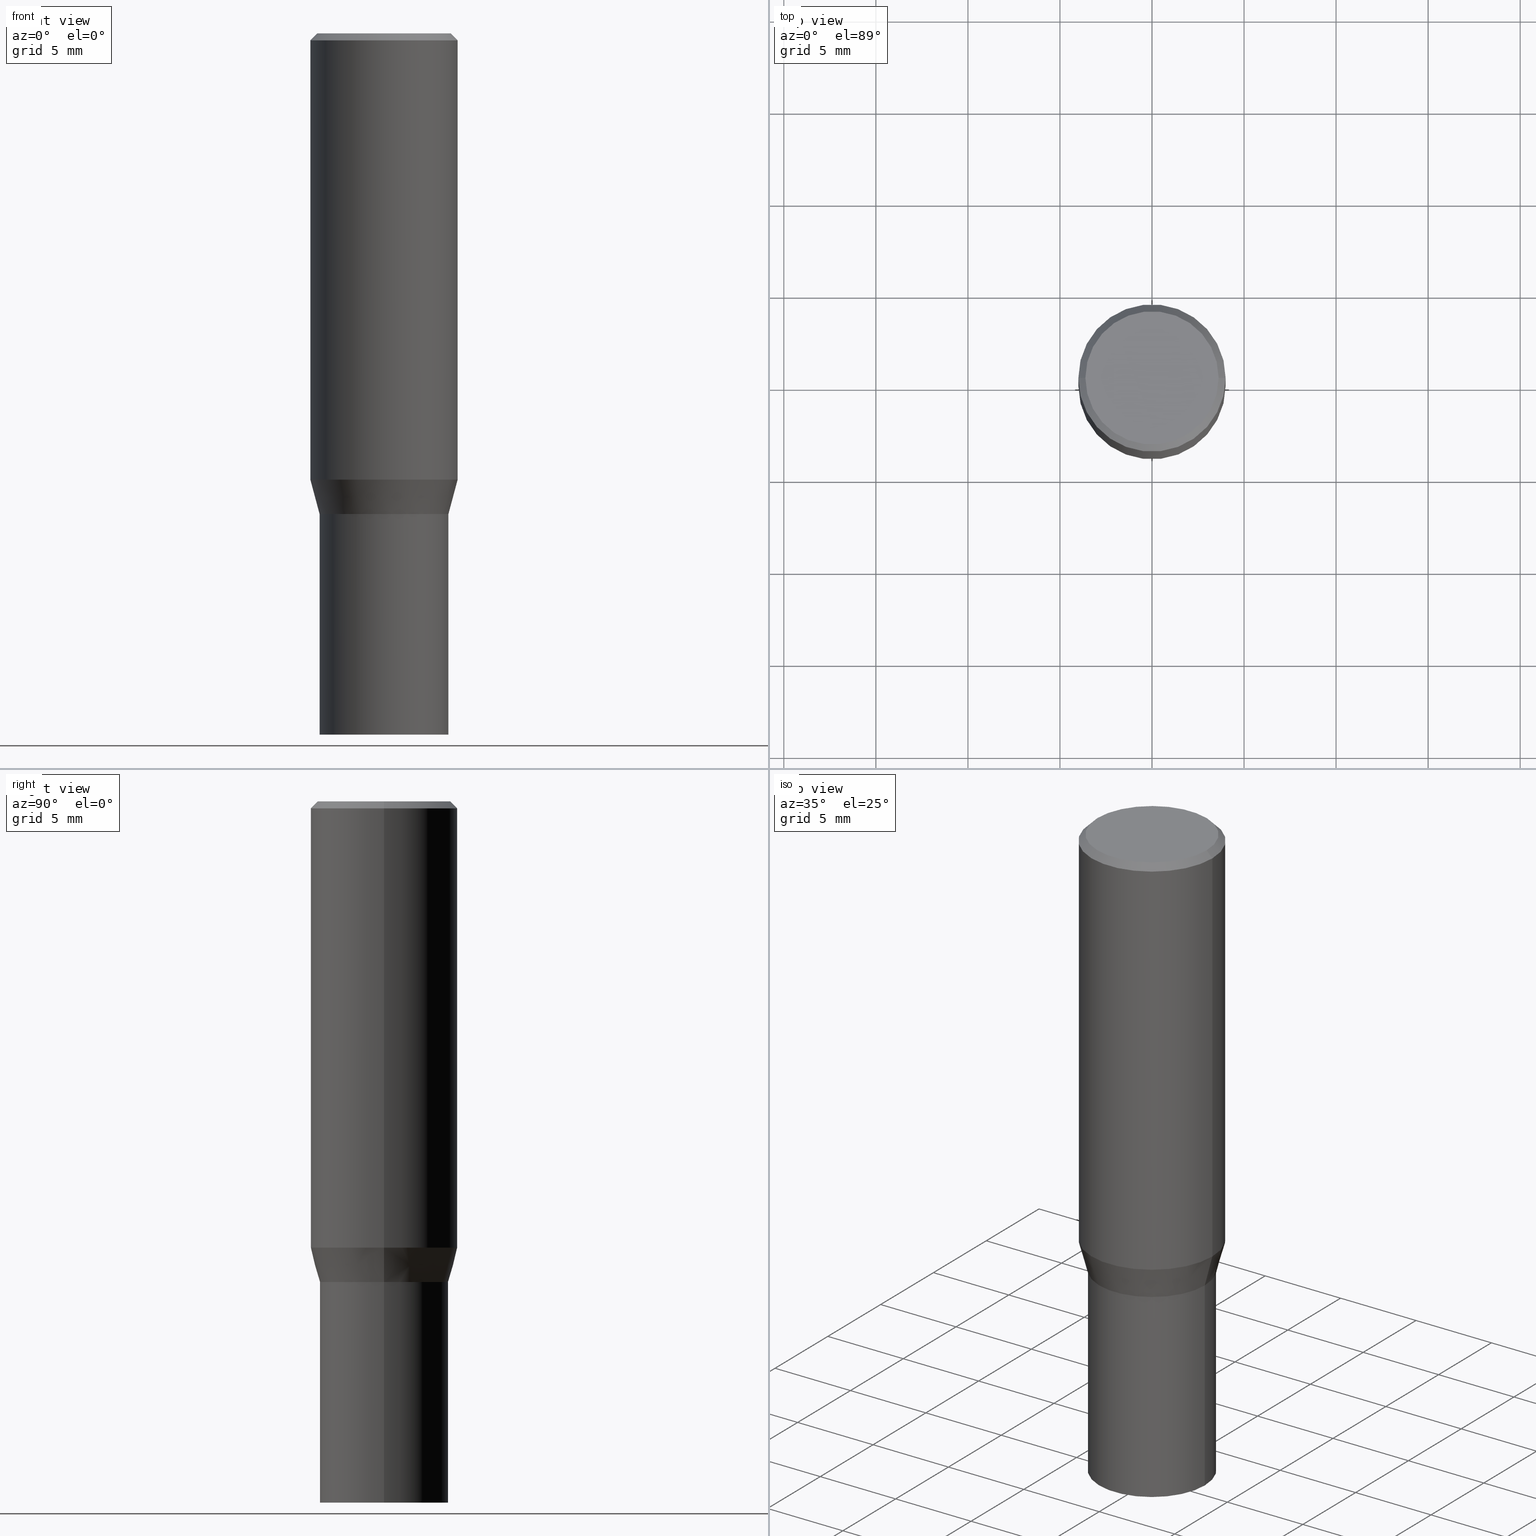
[diagram: canonical four-view strip — front | top / right | iso, engineering-drawing reading convention]
A machine part, canonical four-view strip (front | top / right | iso — engineering-drawing reading convention). The complete STEP part file that produces these views, byte-faithful:
ISO-10303-21;
HEADER;
FILE_DESCRIPTION (( 'STEP AP203' ),
    '1' );
FILE_NAME ('41745.STEP',
    '2024-03-12T19:17:48',
    ( '' ),
    ( '' ),
    'SwSTEP 2.0',
    'SolidWorks 2023',
    '' );
FILE_SCHEMA (( 'CONFIG_CONTROL_DESIGN' ));
ENDSEC;

DATA;
#1 = ADVANCED_FACE ( 'NONE', ( #315 ), #323, .T. ) ;
#2 = FACE_OUTER_BOUND ( 'NONE', #136, .T. ) ;
#3 = CARTESIAN_POINT ( 'NONE',  ( 2.511741010832753769E-29, -3.586100483125795415E-15, -1.027100000000000124 ) ) ;
#4 = AXIS2_PLACEMENT_3D ( 'NONE', #426, #77, #327 ) ;
#5 = DIRECTION ( 'NONE',  ( -2.445468806185136877E-29, 3.491481338843145188E-15, 1.000000000000000000 ) ) ;
#6 = CARTESIAN_POINT ( 'NONE',  ( 2.512963745235846570E-29, -3.587846223795216918E-15, -1.027600000000000069 ) ) ;
#7 = DIRECTION ( 'NONE',  ( 2.445468806185136597E-29, -3.491481338843145583E-15, -1.000000000000000000 ) ) ;
#8 = CARTESIAN_POINT ( 'NONE',  ( 2.512963745235846851E-29, -3.587846223795217707E-15, -1.027600000000000291 ) ) ;
#9 = CC_DESIGN_PERSON_AND_ORGANIZATION_ASSIGNMENT ( #173, #229, ( #64 ) ) ;
#10 = CLOSED_SHELL ( 'NONE', ( #87, #68, #353, #232 ) ) ;
#11 = CIRCLE ( 'NONE', #45, 0.1373000000000000054 ) ;
#12 = CARTESIAN_POINT ( 'NONE',  ( 0.000000000000000000, 0.000000000000000000, 0.000000000000000000 ) ) ;
#13 = MANIFOLD_SOLID_BREP ( 'Body-Move/Copy2[1]', #10 ) ;
#14 = DATE_AND_TIME ( #203, #31 ) ;
#15 = ORIENTED_EDGE ( 'NONE', *, *, #170, .T. ) ;
#16 = EDGE_CURVE ( 'NONE', #91, #58, #384, .T. ) ;
#17 = APPLICATION_PROTOCOL_DEFINITION ( 'international standard', 'config_control_design', 1994, #175 ) ;
#18 = LINE ( 'NONE', #274, #226 ) ;
#19 = ORIENTED_EDGE ( 'NONE', *, *, #174, .T. ) ;
#20 = ORIENTED_EDGE ( 'NONE', *, *, #254, .F. ) ;
#21 = AXIS2_PLACEMENT_3D ( 'NONE', #246, #290, #183 ) ;
#22 = MECHANICAL_CONTEXT ( 'NONE', #175, 'mechanical' ) ;
#23 = VERTEX_POINT ( 'NONE', #372 ) ;
#24 = ORIENTED_EDGE ( 'NONE', *, *, #16, .T. ) ;
#25 = DIRECTION ( 'NONE',  ( -2.445468806185136597E-29, 3.491481338843145583E-15, 1.000000000000000000 ) ) ;
#26 = EDGE_CURVE ( 'NONE', #440, #168, #345, .T. ) ;
#27 = EDGE_LOOP ( 'NONE', ( #451, #20, #446, #231 ) ) ;
#28 = CIRCLE ( 'NONE', #146, 0.1575000000000000011 ) ;
#29 = ADVANCED_FACE ( 'NONE', ( #126 ), #197, .T. ) ;
#30 = CARTESIAN_POINT ( 'NONE',  ( 3.668203209277705088E-31, -5.237222008264718399E-17, -0.01499999999999999944 ) ) ;
#31 = LOCAL_TIME ( 15, 17, 48.00000000000000000, #92 ) ;
#32 = DIRECTION ( 'NONE',  ( 2.445468806185136597E-29, -3.491481338843145583E-15, -1.000000000000000000 ) ) ;
#33 = CARTESIAN_POINT ( 'NONE',  ( 0.000000000000000000, 0.000000000000000000, 0.000000000000000000 ) ) ;
#34 = EDGE_LOOP ( 'NONE', ( #24, #228 ) ) ;
#35 = CARTESIAN_POINT ( 'NONE',  ( 9.622522569851927205E-16, 0.1377999999999964253, -1.027600000000000735 ) ) ;
#36 = PERSON ( 'UNSPECIFIED', 'UNSPECIFIED', 'UNSPECIFIED', ('UNSPECIFIED'), ('UNSPECIFIED'), ('UNSPECIFIED') ) ;
#37 = CARTESIAN_POINT ( 'NONE',  ( 2.334147640248070557E-29, -3.332544217051005165E-15, -0.9544785990908941642 ) ) ;
#38 = AXIS2_PLACEMENT_3D ( 'NONE', #300, #191, #340 ) ;
#39 = EDGE_CURVE ( 'NONE', #454, #202, #18, .T. ) ;
#40 = ORIENTED_EDGE ( 'NONE', *, *, #371, .F. ) ;
#41 = DIRECTION ( 'NONE',  ( 1.000000000000000000, -6.982962677686267499E-15, 4.876176775795935793E-29 ) ) ;
#42 = FACE_OUTER_BOUND ( 'NONE', #281, .T. ) ;
#43 = CC_DESIGN_PERSON_AND_ORGANIZATION_ASSIGNMENT ( #159, #135, ( #158 ) ) ;
#44 = LINE ( 'NONE', #121, #336 ) ;
#45 = AXIS2_PLACEMENT_3D ( 'NONE', #155, #365, #221 ) ;
#46 = SECURITY_CLASSIFICATION ( '', '', #381 ) ;
#47 = EDGE_CURVE ( 'NONE', #94, #200, #167, .T. ) ;
#48 = DIRECTION ( 'NONE',  ( 1.000000000000000000, -6.982962677686270655E-15, 0.000000000000000000 ) ) ;
#49 = ADVANCED_FACE ( 'NONE', ( #258 ), #157, .T. ) ;
#50 = DIRECTION ( 'NONE',  ( 1.000000000000000000, -6.982962677686266711E-15, 0.000000000000000000 ) ) ;
#51 = EDGE_LOOP ( 'NONE', ( #239, #253, #70, #386 ) ) ;
#52 = PERSON_AND_ORGANIZATION ( #36, #329 ) ;
#53 = EDGE_CURVE ( 'NONE', #58, #101, #299, .T. ) ;
#54 = VECTOR ( 'NONE', #5, 39.37007874015748143 ) ;
#55 = COORDINATED_UNIVERSAL_TIME_OFFSET ( 5, 0, .BEHIND. ) ;
#56 = PLANE ( 'NONE',  #373 ) ;
#57 = CARTESIAN_POINT ( 'NONE',  ( 5.413510571379636467E-45, -7.729058366967026333E-31, -2.213690298435890852E-16 ) ) ;
#58 = VERTEX_POINT ( 'NONE', #93 ) ;
#59 = DATE_AND_TIME ( #237, #464 ) ;
#60 = ORIENTED_EDGE ( 'NONE', *, *, #423, .T. ) ;
#61 = PERSON_AND_ORGANIZATION_ROLE ( 'classification_officer' ) ;
#62 = ORIENTED_EDGE ( 'NONE', *, *, #16, .F. ) ;
#63 = AXIS2_PLACEMENT_3D ( 'NONE', #33, #355, #459 ) ;
#64 = PRODUCT ( '41745', '41745', '', ( #22 ) ) ;
#65 = CARTESIAN_POINT ( 'NONE',  ( -0.1575000000000000011, 1.047444401652939809E-15, -0.01499999999999999944 ) ) ;
#66 = PERSON_AND_ORGANIZATION ( #36, #329 ) ;
#67 = ORIENTED_EDGE ( 'NONE', *, *, #248, .T. ) ;
#68 = ADVANCED_FACE ( 'NONE', ( #375 ), #56, .F. ) ;
#69 = DIRECTION ( 'NONE',  ( -1.000000000000000000, 6.982962677686265922E-15, 0.000000000000000000 ) ) ;
#70 = ORIENTED_EDGE ( 'NONE', *, *, #26, .T. ) ;
#71 = AXIS2_PLACEMENT_3D ( 'NONE', #447, #132, #436 ) ;
#72 = FACE_OUTER_BOUND ( 'NONE', #34, .T. ) ;
#73 = ADVANCED_FACE ( 'NONE', ( #245 ), #378, .F. ) ;
#74 = CARTESIAN_POINT ( 'NONE',  ( 0.1575000000000000011, -4.432360838786593040E-15, -0.9544785990908941642 ) ) ;
#75 = DIRECTION ( 'NONE',  ( -0.7071067811865526798, 2.468850131082310309E-15, -0.7071067811865424657 ) ) ;
#76 = DIRECTION ( 'NONE',  ( 1.000000000000000000, -6.982962677686265922E-15, 0.000000000000000000 ) ) ;
#77 = DIRECTION ( 'NONE',  ( -2.445468806185136597E-29, 3.491481338843145583E-15, 1.000000000000000000 ) ) ;
#78 = CIRCLE ( 'NONE', #356, 0.1378000000000002001 ) ;
#79 = LOCAL_TIME ( 15, 17, 48.00000000000000000, #55 ) ;
#80 = CARTESIAN_POINT ( 'NONE',  ( 0.1575000000000000011, -1.132900654731663450E-15, -0.01499999999999999944 ) ) ;
#81 = DIRECTION ( 'NONE',  ( 1.000000000000000000, -6.982962677686265922E-15, 0.000000000000000000 ) ) ;
#82 = DIRECTION ( 'NONE',  ( 1.000000000000000000, -6.982962677686266711E-15, 0.000000000000000000 ) ) ;
#83 = DIRECTION ( 'NONE',  ( -2.445468806185136597E-29, 3.491481338843145583E-15, 1.000000000000000000 ) ) ;
#84 = CARTESIAN_POINT ( 'NONE',  ( 0.1373000000000000054, -4.546606999441542177E-15, -1.027600000000000291 ) ) ;
#85 = CARTESIAN_POINT ( 'NONE',  ( -0.1575000000000000011, -2.213439408228846773E-15, -0.9544785990908941642 ) ) ;
#86 = CIRCLE ( 'NONE', #429, 0.1378000000000002001 ) ;
#87 = ADVANCED_FACE ( 'NONE', ( #166 ), #394, .T. ) ;
#88 = DIRECTION ( 'NONE',  ( -2.445468806185136597E-29, 3.491481338843145583E-15, 1.000000000000000000 ) ) ;
#89 = APPROVAL_ROLE ( '' ) ;
#90 = EDGE_CURVE ( 'NONE', #58, #91, #267, .T. ) ;
#91 = VERTEX_POINT ( 'NONE', #184 ) ;
#92 = COORDINATED_UNIVERSAL_TIME_OFFSET ( 5, 0, .BEHIND. ) ;
#93 = CARTESIAN_POINT ( 'NONE',  ( 0.1424999999999999878, -1.055260809707053708E-15, -2.213690298435819362E-16 ) ) ;
#94 = VERTEX_POINT ( 'NONE', #85 ) ;
#95 = CC_DESIGN_APPROVAL ( #406, ( #46 ) ) ;
#96 = PERSON_AND_ORGANIZATION_ROLE ( 'design_supplier' ) ;
#97 = DIRECTION ( 'NONE',  ( 1.000000000000000000, -6.982962677686265922E-15, 4.876176775795935793E-29 ) ) ;
#98 = DIRECTION ( 'NONE',  ( 1.000000000000000000, -6.982962677686266711E-15, 4.874020801377837404E-29 ) ) ;
#99 = ORIENTED_EDGE ( 'NONE', *, *, #90, .F. ) ;
#100 = EDGE_LOOP ( 'NONE', ( #286, #437, #243, #198 ) ) ;
#101 = VERTEX_POINT ( 'NONE', #296 ) ;
#102 = APPROVAL_STATUS ( 'not_yet_approved' ) ;
#103 = ORIENTED_EDGE ( 'NONE', *, *, #47, .F. ) ;
#104 = AXIS2_PLACEMENT_3D ( 'NONE', #30, #324, #218 ) ;
#105 = APPROVAL_PERSON_ORGANIZATION ( #307, #189, #377 ) ;
#106 = ORIENTED_EDGE ( 'NONE', *, *, #214, .T. ) ;
#107 = LINE ( 'NONE', #389, #391 ) ;
#108 = DIRECTION ( 'NONE',  ( -2.445468806185136597E-29, 3.491481338843145583E-15, 1.000000000000000000 ) ) ;
#109 = AXIS2_PLACEMENT_3D ( 'NONE', #6, #265, #335 ) ;
#110 = CARTESIAN_POINT ( 'NONE',  ( -0.1373000000000000054, -2.612271047596599917E-15, -1.027600000000000291 ) ) ;
#111 = CC_DESIGN_SECURITY_CLASSIFICATION ( #46, ( #158 ) ) ;
#112 = DIRECTION ( 'NONE',  ( -2.445468806185136597E-29, 3.491481338843145583E-15, 1.000000000000000000 ) ) ;
#113 = ORIENTED_EDGE ( 'NONE', *, *, #131, .T. ) ;
#114 = CARTESIAN_POINT ( 'NONE',  ( 2.513941932758320587E-29, -3.589242816330753332E-15, -1.028000000000000025 ) ) ;
#115 = PRODUCT_DEFINITION ( 'UNKNOWN', '', #158, #392 ) ;
#116 = CARTESIAN_POINT ( 'NONE',  ( 0.1378000000000000058, -6.199474265249886443E-15, -1.500000000000000222 ) ) ;
#117 = AXIS2_PLACEMENT_3D ( 'NONE', #344, #161, #439 ) ;
#118 = AXIS2_PLACEMENT_3D ( 'NONE', #302, #120, #431 ) ;
#119 = EDGE_CURVE ( 'NONE', #91, #200, #171, .T. ) ;
#120 = DIRECTION ( 'NONE',  ( -2.445468806185136597E-29, 3.491481338843145583E-15, 1.000000000000000000 ) ) ;
#121 = CARTESIAN_POINT ( 'NONE',  ( -0.1378000000000000058, 9.791278898774180975E-16, -6.778292554371260034E-30 ) ) ;
#122 = LENGTH_MEASURE_WITH_UNIT ( LENGTH_MEASURE( 0.02539999999999999897 ), #339 );
#123 = AXIS2_PLACEMENT_3D ( 'NONE', #337, #430, #48 ) ;
#124 = PLANE ( 'NONE',  #397 ) ;
#125 = PERSON_AND_ORGANIZATION_ROLE ( 'creator' ) ;
#126 = FACE_OUTER_BOUND ( 'NONE', #163, .T. ) ;
#127 = CC_DESIGN_PERSON_AND_ORGANIZATION_ASSIGNMENT ( #66, #125, ( #115 ) ) ;
#128 = ORIENTED_EDGE ( 'NONE', *, *, #141, .F. ) ;
#129 = DATE_AND_TIME ( #199, #284 ) ;
#130 = ADVANCED_FACE ( 'NONE', ( #142 ), #460, .F. ) ;
#131 = EDGE_CURVE ( 'NONE', #449, #454, #403, .T. ) ;
#132 = DIRECTION ( 'NONE',  ( -2.445468806185136597E-29, 3.491481338843145583E-15, 1.000000000000000000 ) ) ;
#133 = ORIENTED_EDGE ( 'NONE', *, *, #119, .T. ) ;
#134 = VERTEX_POINT ( 'NONE', #256 ) ;
#135 = PERSON_AND_ORGANIZATION_ROLE ( 'creator' ) ;
#136 = EDGE_LOOP ( 'NONE', ( #216, #382 ) ) ;
#137 = CONICAL_SURFACE ( 'NONE', #123, 0.1378000000000002001, 0.2617993877991500740 ) ;
#138 = DIRECTION ( 'NONE',  ( -2.445468806185136877E-29, 3.491481338843145188E-15, 1.000000000000000000 ) ) ;
#139 = ORIENTED_EDGE ( 'NONE', *, *, #432, .T. ) ;
#140 = ORIENTED_EDGE ( 'NONE', *, *, #182, .F. ) ;
#141 = EDGE_CURVE ( 'NONE', #454, #204, #425, .T. ) ;
#142 = FACE_OUTER_BOUND ( 'NONE', #346, .T. ) ;
#143 = ORIENTED_EDGE ( 'NONE', *, *, #214, .F. ) ;
#144 = DIRECTION ( 'NONE',  ( 1.000000000000000000, -6.982962677686267499E-15, 4.876176775795936353E-29 ) ) ;
#145 = ORIENTED_EDGE ( 'NONE', *, *, #223, .T. ) ;
#146 = AXIS2_PLACEMENT_3D ( 'NONE', #361, #359, #215 ) ;
#147 = LINE ( 'NONE', #110, #240 ) ;
#148 = DIRECTION ( 'NONE',  ( -0.2588190451025213501, 5.211531920934551042E-15, 0.9659258262890682012 ) ) ;
#149 = DIRECTION ( 'NONE',  ( -2.445468806185136597E-29, 3.491481338843145583E-15, 1.000000000000000000 ) ) ;
#150 = DIRECTION ( 'NONE',  ( -2.445468806185136597E-29, 3.491481338843145583E-15, 1.000000000000000000 ) ) ;
#151 = EDGE_CURVE ( 'NONE', #449, #134, #107, .T. ) ;
#152 = AXIS2_PLACEMENT_3D ( 'NONE', #325, #289, #153 ) ;
#153 = DIRECTION ( 'NONE',  ( 1.000000000000000000, -6.982962677686266711E-15, 4.874020801377837404E-29 ) ) ;
#154 = CARTESIAN_POINT ( 'NONE',  ( 2.512963745235846851E-29, -3.587846223795217707E-15, -1.027600000000000291 ) ) ;
#155 = CARTESIAN_POINT ( 'NONE',  ( 2.512963745235846851E-29, -3.587846223795217707E-15, -1.027600000000000291 ) ) ;
#156 = DIRECTION ( 'NONE',  ( 1.000000000000000000, -6.982962677686266711E-15, 0.000000000000000000 ) ) ;
#157 = CONICAL_SURFACE ( 'NONE', #368, 0.1373000000000000054, 0.7853981633974653764 ) ;
#158 = PRODUCT_DEFINITION_FORMATION_WITH_SPECIFIED_SOURCE ( 'ANY', '', #64, .NOT_KNOWN. ) ;
#159 = PERSON_AND_ORGANIZATION ( #36, #329 ) ;
#160 = APPROVAL_STATUS ( 'not_yet_approved' ) ;
#161 = DIRECTION ( 'NONE',  ( -2.445468806185136597E-29, 3.491481338843145583E-15, 1.000000000000000000 ) ) ;
#162 = ADVANCED_FACE ( 'NONE', ( #72 ), #288, .F. ) ;
#163 = EDGE_LOOP ( 'NONE', ( #103, #106, #360, #313 ) ) ;
#164 = ORIENTED_EDGE ( 'NONE', *, *, #119, .F. ) ;
#165 = ORIENTED_EDGE ( 'NONE', *, *, #131, .F. ) ;
#166 = FACE_OUTER_BOUND ( 'NONE', #420, .T. ) ;
#167 = LINE ( 'NONE', #263, #54 ) ;
#168 = VERTEX_POINT ( 'NONE', #285 ) ;
#169 = APPROVAL_ROLE ( '' ) ;
#170 = EDGE_CURVE ( 'NONE', #449, #94, #213, .T. ) ;
#171 = LINE ( 'NONE', #65, #180 ) ;
#172 = EDGE_LOOP ( 'NONE', ( #385, #15, #320, #128 ) ) ;
#173 = PERSON_AND_ORGANIZATION ( #36, #329 ) ;
#174 = EDGE_CURVE ( 'NONE', #134, #202, #86, .T. ) ;
#175 = APPLICATION_CONTEXT ( 'configuration controlled 3d designs of mechanical parts and assemblies' ) ;
#176 = CARTESIAN_POINT ( 'NONE',  ( 2.513941932758320587E-29, -3.589242816330753332E-15, -1.028000000000000025 ) ) ;
#177 = DIRECTION ( 'NONE',  ( -0.7071067811865595631, 7.493145998870398336E-15, 0.7071067811865354713 ) ) ;
#178 = PLANE ( 'NONE',  #303 ) ;
#179 = CARTESIAN_POINT ( 'NONE',  ( 0.000000000000000000, 0.000000000000000000, 0.000000000000000000 ) ) ;
#180 = VECTOR ( 'NONE', #75, 39.37007874015748143 ) ;
#181 = CC_DESIGN_DATE_AND_TIME_ASSIGNMENT ( #14, #306, ( #46 ) ) ;
#182 = EDGE_CURVE ( 'NONE', #23, #134, #147, .T. ) ;
#183 = DIRECTION ( 'NONE',  ( -1.000000000000000000, 6.982962677686265922E-15, -4.876176775795935793E-29 ) ) ;
#184 = CARTESIAN_POINT ( 'NONE',  ( -0.1424999999999999878, 1.021258291611616073E-15, -2.213690298435961110E-16 ) ) ;
#185 = CARTESIAN_POINT ( 'NONE',  ( 3.668203209277705088E-31, -5.237222008264718399E-17, -0.01499999999999999944 ) ) ;
#186 = CARTESIAN_POINT ( 'NONE',  ( 0.1575000000000000011, -1.099816621735586889E-15, 7.679978421878598033E-30 ) ) ;
#187 = VECTOR ( 'NONE', #270, 39.37007874015748143 ) ;
#188 = CIRCLE ( 'NONE', #260, 0.1378000000000000058 ) ;
#189 = APPROVAL ( #195, 'UNSPECIFIED' ) ;
#190 = CARTESIAN_POINT ( 'NONE',  ( -0.1378000000000002001, -2.411777167341090313E-15, -1.028000000000000025 ) ) ;
#191 = DIRECTION ( 'NONE',  ( -2.445468806185136597E-29, 3.491481338843145583E-15, 1.000000000000000000 ) ) ;
#192 = CARTESIAN_POINT ( 'NONE',  ( 0.1378000000000000058, -9.622522569851676742E-16, 6.719371597046799937E-30 ) ) ;
#193 = CIRCLE ( 'NONE', #205, 0.1575000000000000011 ) ;
#194 = CIRCLE ( 'NONE', #220, 0.1373000000000000054 ) ;
#195 = APPROVAL_STATUS ( 'not_yet_approved' ) ;
#196 = CARTESIAN_POINT ( 'NONE',  ( 3.576687321579069994E-29, -5.368277968210015545E-15, -1.500000000000000222 ) ) ;
#197 = CYLINDRICAL_SURFACE ( 'NONE', #117, 0.1575000000000000011 ) ;
#198 = ORIENTED_EDGE ( 'NONE', *, *, #461, .F. ) ;
#199 = CALENDAR_DATE ( 2024, 12, 3 ) ;
#200 = VERTEX_POINT ( 'NONE', #326 ) ;
#201 = ADVANCED_FACE ( 'NONE', ( #209 ), #348, .T. ) ;
#202 = VERTEX_POINT ( 'NONE', #393 ) ;
#203 = CALENDAR_DATE ( 2024, 12, 3 ) ;
#204 = VERTEX_POINT ( 'NONE', #74 ) ;
#205 = AXIS2_PLACEMENT_3D ( 'NONE', #462, #112, #76 ) ;
#206 = APPROVAL_DATE_TIME ( #129, #189 ) ;
#207 = ADVANCED_BREP_SHAPE_REPRESENTATION ( '41745', ( #13, #334, #305 ), #363 ) ;
#208 = EDGE_LOOP ( 'NONE', ( #140, #60, #349, #272 ) ) ;
#209 = FACE_OUTER_BOUND ( 'NONE', #242, .T. ) ;
#210 = CLOSED_SHELL ( 'NONE', ( #130, #49, #201, #217, #1, #257, #29, #408, #162, #294, #269, #73 ) ) ;
#211 = VECTOR ( 'NONE', #366, 39.37007874015748143 ) ;
#212 = AXIS2_PLACEMENT_3D ( 'NONE', #185, #7, #402 ) ;
#213 = LINE ( 'NONE', #358, #291 ) ;
#214 = EDGE_CURVE ( 'NONE', #94, #204, #28, .T. ) ;
#215 = DIRECTION ( 'NONE',  ( 1.000000000000000000, -6.982962677686264344E-15, 0.000000000000000000 ) ) ;
#216 = ORIENTED_EDGE ( 'NONE', *, *, #301, .F. ) ;
#217 = ADVANCED_FACE ( 'NONE', ( #354 ), #295, .T. ) ;
#218 = DIRECTION ( 'NONE',  ( 1.000000000000000000, -6.982962677686265922E-15, 0.000000000000000000 ) ) ;
#219 = AXIS2_PLACEMENT_3D ( 'NONE', #114, #293, #396 ) ;
#220 = AXIS2_PLACEMENT_3D ( 'NONE', #8, #83, #156 ) ;
#221 = DIRECTION ( 'NONE',  ( 1.000000000000000000, -6.982962677686266711E-15, 0.000000000000000000 ) ) ;
#222 = CYLINDRICAL_SURFACE ( 'NONE', #282, 0.1378000000000000058 ) ;
#223 = EDGE_CURVE ( 'NONE', #101, #200, #193, .T. ) ;
#224 = DIRECTION ( 'NONE',  ( 1.000000000000000000, -6.982962677686265922E-15, 4.876176775795935793E-29 ) ) ;
#225 = FACE_OUTER_BOUND ( 'NONE', #51, .T. ) ;
#226 = VECTOR ( 'NONE', #379, 39.37007874015748143 ) ;
#227 = SHAPE_DEFINITION_REPRESENTATION ( #450, #207 ) ;
#228 = ORIENTED_EDGE ( 'NONE', *, *, #90, .T. ) ;
#229 = PERSON_AND_ORGANIZATION_ROLE ( 'design_owner' ) ;
#230 = AXIS2_PLACEMENT_3D ( 'NONE', #444, #412, #234 ) ;
#231 = ORIENTED_EDGE ( 'NONE', *, *, #414, .T. ) ;
#232 = ADVANCED_FACE ( 'NONE', ( #466 ), #178, .F. ) ;
#233 = PERSON_AND_ORGANIZATION ( #36, #329 ) ;
#234 = DIRECTION ( 'NONE',  ( 1.000000000000000000, -6.982962677686267499E-15, 4.876176775795936353E-29 ) ) ;
#235 = APPROVAL_DATE_TIME ( #59, #309 ) ;
#236 = VERTEX_POINT ( 'NONE', #395 ) ;
#237 = CALENDAR_DATE ( 2024, 12, 3 ) ;
#238 = EDGE_CURVE ( 'NONE', #200, #101, #275, .T. ) ;
#239 = ORIENTED_EDGE ( 'NONE', *, *, #432, .F. ) ;
#240 = VECTOR ( 'NONE', #177, 39.37007874015748143 ) ;
#241 = AXIS2_PLACEMENT_3D ( 'NONE', #3, #150, #297 ) ;
#242 = EDGE_LOOP ( 'NONE', ( #99, #322, #145, #164 ) ) ;
#243 = ORIENTED_EDGE ( 'NONE', *, *, #414, .F. ) ;
#244 = ORIENTED_EDGE ( 'NONE', *, *, #53, .F. ) ;
#245 = FACE_OUTER_BOUND ( 'NONE', #27, .T. ) ;
#246 = CARTESIAN_POINT ( 'NONE',  ( 9.950721815702929274E-16, 0.1424999999999999878, -6.082206057069427689E-16 ) ) ;
#247 = ORIENTED_EDGE ( 'NONE', *, *, #39, .F. ) ;
#248 = EDGE_CURVE ( 'NONE', #204, #94, #250, .T. ) ;
#249 = CARTESIAN_POINT ( 'NONE',  ( 0.1378000000000002001, -4.551495073315923176E-15, -1.028000000000000025 ) ) ;
#250 = CIRCLE ( 'NONE', #463, 0.1575000000000000011 ) ;
#251 = CC_DESIGN_APPROVAL ( #189, ( #115 ) ) ;
#252 = CARTESIAN_POINT ( 'NONE',  ( 3.668203209277705088E-31, -5.237222008264718399E-17, -0.01499999999999999944 ) ) ;
#253 = ORIENTED_EDGE ( 'NONE', *, *, #371, .T. ) ;
#254 = EDGE_CURVE ( 'NONE', #454, #449, #78, .T. ) ;
#255 = DIRECTION ( 'NONE',  ( 2.438088387897960049E-29, -3.491481338843145188E-15, -1.000000000000000000 ) ) ;
#256 = CARTESIAN_POINT ( 'NONE',  ( -0.1378000000000002001, -2.606972593248375937E-15, -1.027100000000000124 ) ) ;
#257 = ADVANCED_FACE ( 'NONE', ( #455 ), #137, .T. ) ;
#258 = FACE_OUTER_BOUND ( 'NONE', #100, .T. ) ;
#259 = CONICAL_SURFACE ( 'NONE', #362, 0.1373000000000000054, 0.7853981633974653764 ) ;
#260 = AXIS2_PLACEMENT_3D ( 'NONE', #304, #88, #81 ) ;
#261 = FACE_OUTER_BOUND ( 'NONE', #208, .T. ) ;
#262 = EDGE_CURVE ( 'NONE', #204, #101, #266, .T. ) ;
#263 = CARTESIAN_POINT ( 'NONE',  ( -0.1575000000000000011, 1.119104808822157801E-15, -7.747322767151475583E-30 ) ) ;
#264 = LINE ( 'NONE', #84, #268 ) ;
#265 = DIRECTION ( 'NONE',  ( -2.445468806185136597E-29, 3.491481338843145583E-15, 1.000000000000000000 ) ) ;
#266 = LINE ( 'NONE', #186, #187 ) ;
#267 = CIRCLE ( 'NONE', #152, 0.1424999999999999878 ) ;
#268 = VECTOR ( 'NONE', #401, 39.37007874015748143 ) ;
#269 = ADVANCED_FACE ( 'NONE', ( #261 ), #259, .T. ) ;
#270 = DIRECTION ( 'NONE',  ( -2.445468806185136877E-29, 3.491481338843145188E-15, 1.000000000000000000 ) ) ;
#271 =( NAMED_UNIT ( * ) SI_UNIT ( $, .STERADIAN. ) SOLID_ANGLE_UNIT ( ) );
#272 = ORIENTED_EDGE ( 'NONE', *, *, #174, .F. ) ;
#273 = DATE_AND_TIME ( #443, #79 ) ;
#274 = CARTESIAN_POINT ( 'NONE',  ( 0.1378000000000002001, -9.622522569851690547E-16, 6.719371597046809746E-30 ) ) ;
#275 = CIRCLE ( 'NONE', #104, 0.1575000000000000011 ) ;
#276 = ORIENTED_EDGE ( 'NONE', *, *, #151, .T. ) ;
#277 = ORIENTED_EDGE ( 'NONE', *, *, #453, .F. ) ;
#278 = DIRECTION ( 'NONE',  ( -2.445468806185136597E-29, 3.491481338843145583E-15, 1.000000000000000000 ) ) ;
#279 = CALENDAR_DATE ( 2024, 12, 3 ) ;
#280 = ORIENTED_EDGE ( 'NONE', *, *, #428, .F. ) ;
#281 = EDGE_LOOP ( 'NONE', ( #244, #62, #133, #380 ) ) ;
#282 = AXIS2_PLACEMENT_3D ( 'NONE', #404, #149, #41 ) ;
#283 = PRODUCT_RELATED_PRODUCT_CATEGORY ( 'detail', '', ( #64 ) ) ;
#284 = LOCAL_TIME ( 15, 17, 48.00000000000000000, #311 ) ;
#285 = CARTESIAN_POINT ( 'NONE',  ( 0.1378000000000000058, -4.550098480780384395E-15, -1.027600000000000069 ) ) ;
#286 = ORIENTED_EDGE ( 'NONE', *, *, #301, .T. ) ;
#287 = ORIENTED_EDGE ( 'NONE', *, *, #141, .T. ) ;
#288 = PLANE ( 'NONE',  #21 ) ;
#289 = DIRECTION ( 'NONE',  ( -2.445468806185136597E-29, 3.491481338843145583E-15, 1.000000000000000000 ) ) ;
#290 = DIRECTION ( 'NONE',  ( 2.438088387897960049E-29, -3.491481338843145188E-15, -1.000000000000000000 ) ) ;
#291 = VECTOR ( 'NONE', #148, 39.37007874015747433 ) ;
#292 = APPROVAL_PERSON_ORGANIZATION ( #413, #309, #169 ) ;
#293 = DIRECTION ( 'NONE',  ( -2.445468806185136597E-29, 3.491481338843145583E-15, 1.000000000000000000 ) ) ;
#294 = ADVANCED_FACE ( 'NONE', ( #2 ), #124, .F. ) ;
#295 = CYLINDRICAL_SURFACE ( 'NONE', #4, 0.1575000000000000011 ) ;
#296 = CARTESIAN_POINT ( 'NONE',  ( 0.1575000000000000011, -1.152188841818234165E-15, -0.01499999999999999944 ) ) ;
#297 = DIRECTION ( 'NONE',  ( 1.000000000000000000, -6.982962677686267499E-15, 0.000000000000000000 ) ) ;
#298 = CARTESIAN_POINT ( 'NONE',  ( 0.1378000000000002001, -4.551495073315923176E-15, -1.028000000000000025 ) ) ;
#299 = LINE ( 'NONE', #80, #211 ) ;
#300 = CARTESIAN_POINT ( 'NONE',  ( 3.668203209277704895E-29, -5.237222008264718177E-15, -1.500000000000000222 ) ) ;
#301 = EDGE_CURVE ( 'NONE', #318, #23, #11, .T. ) ;
#302 = CARTESIAN_POINT ( 'NONE',  ( 3.668203209277704895E-29, -5.237222008264718177E-15, -1.500000000000000222 ) ) ;
#303 = AXIS2_PLACEMENT_3D ( 'NONE', #35, #255, #351 ) ;
#304 = CARTESIAN_POINT ( 'NONE',  ( 2.512963745235846570E-29, -3.587846223795216918E-15, -1.027600000000000069 ) ) ;
#305 = AXIS2_PLACEMENT_3D ( 'NONE', #12, #407, #438 ) ;
#306 = DATE_TIME_ROLE ( 'classification_date' ) ;
#307 = PERSON_AND_ORGANIZATION ( #36, #329 ) ;
#308 = ORIENTED_EDGE ( 'NONE', *, *, #453, .T. ) ;
#309 = APPROVAL ( #102, 'UNSPECIFIED' ) ;
#310 = UNCERTAINTY_MEASURE_WITH_UNIT (LENGTH_MEASURE( 1.000000000000000082E-05 ), #434, 'distance_accuracy_value', 'NONE');
#311 = COORDINATED_UNIVERSAL_TIME_OFFSET ( 5, 0, .BEHIND. ) ;
#312 = CIRCLE ( 'NONE', #109, 0.1378000000000000058 ) ;
#313 = ORIENTED_EDGE ( 'NONE', *, *, #238, .F. ) ;
#314 = APPROVAL_PERSON_ORGANIZATION ( #347, #406, #89 ) ;
#315 = FACE_OUTER_BOUND ( 'NONE', #172, .T. ) ;
#316 = EDGE_LOOP ( 'NONE', ( #308, #418 ) ) ;
#317 = APPLICATION_PROTOCOL_DEFINITION ( 'international standard', 'config_control_design', 1994, #435 ) ;
#318 = VERTEX_POINT ( 'NONE', #367 ) ;
#319 = DATE_TIME_ROLE ( 'creation_date' ) ;
#320 = ORIENTED_EDGE ( 'NONE', *, *, #248, .F. ) ;
#321 = DIRECTION ( 'NONE',  ( 1.000000000000000000, -6.982962677686270655E-15, 0.000000000000000000 ) ) ;
#322 = ORIENTED_EDGE ( 'NONE', *, *, #53, .T. ) ;
#323 = CONICAL_SURFACE ( 'NONE', #71, 0.1378000000000002001, 0.2617993877991500740 ) ;
#324 = DIRECTION ( 'NONE',  ( -2.445468806185136597E-29, 3.491481338843145583E-15, 1.000000000000000000 ) ) ;
#325 = CARTESIAN_POINT ( 'NONE',  ( 5.413510571379636467E-45, -7.729058366967026333E-31, -2.213690298435890852E-16 ) ) ;
#326 = CARTESIAN_POINT ( 'NONE',  ( -0.1575000000000000011, -5.733534097446686172E-16, -0.01499999999999999944 ) ) ;
#327 = DIRECTION ( 'NONE',  ( 1.000000000000000000, -6.982962677686265922E-15, 4.876176775795935232E-29 ) ) ;
#328 = CIRCLE ( 'NONE', #38, 0.1378000000000000058 ) ;
#329 = ORGANIZATION ( 'UNSPECIFIED', 'UNSPECIFIED', '' ) ;
#330 = LOCAL_TIME ( 15, 17, 48.00000000000000000, #448 ) ;
#331 = DIRECTION ( 'NONE',  ( 1.000000000000000000, -6.982962677686264344E-15, 0.000000000000000000 ) ) ;
#332 = DIRECTION ( 'NONE',  ( -2.438088387897960049E-29, 3.491481338843145188E-15, 1.000000000000000000 ) ) ;
#333 = CC_DESIGN_PERSON_AND_ORGANIZATION_ASSIGNMENT ( #233, #61, ( #46 ) ) ;
#334 = MANIFOLD_SOLID_BREP ( 'Body-Move/Copy2[2]', #210 ) ;
#335 = DIRECTION ( 'NONE',  ( 1.000000000000000000, -6.982962677686265922E-15, 0.000000000000000000 ) ) ;
#336 = VECTOR ( 'NONE', #427, 39.37007874015748143 ) ;
#337 = CARTESIAN_POINT ( 'NONE',  ( 2.513941932758320587E-29, -3.589242816330753332E-15, -1.028000000000000025 ) ) ;
#338 = EDGE_CURVE ( 'NONE', #452, #168, #312, .T. ) ;
#339 =( LENGTH_UNIT ( ) NAMED_UNIT ( * ) SI_UNIT ( $, .METRE. ) );
#340 = DIRECTION ( 'NONE',  ( 1.000000000000000000, -6.982962677686265922E-15, 0.000000000000000000 ) ) ;
#341 = DIRECTION ( 'NONE',  ( -2.445468806185136877E-29, 3.491481338843145188E-15, 1.000000000000000000 ) ) ;
#342 = ORIENTED_EDGE ( 'NONE', *, *, #262, .F. ) ;
#343 = DIRECTION ( 'NONE',  ( -2.438088387897960049E-29, 3.491481338843145188E-15, 1.000000000000000000 ) ) ;
#344 = CARTESIAN_POINT ( 'NONE',  ( 0.000000000000000000, 0.000000000000000000, 0.000000000000000000 ) ) ;
#345 = LINE ( 'NONE', #192, #433 ) ;
#346 = EDGE_LOOP ( 'NONE', ( #165, #276, #19, #247 ) ) ;
#347 = PERSON_AND_ORGANIZATION ( #36, #329 ) ;
#348 = CONICAL_SURFACE ( 'NONE', #417, 0.1575000000000000011, 0.7853981633974554954 ) ;
#349 = ORIENTED_EDGE ( 'NONE', *, *, #461, .T. ) ;
#350 = APPROVAL_DATE_TIME ( #383, #406 ) ;
#351 = DIRECTION ( 'NONE',  ( -1.000000000000000000, 6.982962677686265922E-15, -4.876176775795935793E-29 ) ) ;
#352 = ORIENTED_EDGE ( 'NONE', *, *, #47, .T. ) ;
#353 = ADVANCED_FACE ( 'NONE', ( #225 ), #222, .T. ) ;
#354 = FACE_OUTER_BOUND ( 'NONE', #376, .T. ) ;
#355 = DIRECTION ( 'NONE',  ( -2.445468806185136597E-29, 3.491481338843145583E-15, 1.000000000000000000 ) ) ;
#356 = AXIS2_PLACEMENT_3D ( 'NONE', #176, #108, #321 ) ;
#357 = CC_DESIGN_APPROVAL ( #309, ( #158 ) ) ;
#358 = CARTESIAN_POINT ( 'NONE',  ( -0.1378000000000002001, -2.610114926453333854E-15, -1.028000000000000025 ) ) ;
#359 = DIRECTION ( 'NONE',  ( -2.445468806185136597E-29, 3.491481338843145583E-15, 1.000000000000000000 ) ) ;
#360 = ORIENTED_EDGE ( 'NONE', *, *, #262, .T. ) ;
#361 = CARTESIAN_POINT ( 'NONE',  ( 2.334147640248070557E-29, -3.332544217051005165E-15, -0.9544785990908941642 ) ) ;
#362 = AXIS2_PLACEMENT_3D ( 'NONE', #154, #370, #50 ) ;
#363 =( GEOMETRIC_REPRESENTATION_CONTEXT ( 3 ) GLOBAL_UNCERTAINTY_ASSIGNED_CONTEXT ( ( #310 ) ) GLOBAL_UNIT_ASSIGNED_CONTEXT ( ( #434, #374, #271 ) ) REPRESENTATION_CONTEXT ( 'NONE', 'WORKASPACE' ) );
#364 = CC_DESIGN_PERSON_AND_ORGANIZATION_ASSIGNMENT ( #52, #96, ( #158 ) ) ;
#365 = DIRECTION ( 'NONE',  ( -2.445468806185136597E-29, 3.491481338843145583E-15, 1.000000000000000000 ) ) ;
#366 = DIRECTION ( 'NONE',  ( 0.7071067811865526798, -7.319954787623273400E-15, -0.7071067811865424657 ) ) ;
#367 = CARTESIAN_POINT ( 'NONE',  ( 0.1373000000000000054, -4.546606999441542177E-15, -1.027600000000000291 ) ) ;
#368 = AXIS2_PLACEMENT_3D ( 'NONE', #398, #400, #82 ) ;
#369 = DIMENSIONAL_EXPONENTS ( 1.000000000000000000, 0.000000000000000000, 0.000000000000000000, 0.000000000000000000, 0.000000000000000000, 0.000000000000000000, 0.000000000000000000 ) ;
#370 = DIRECTION ( 'NONE',  ( -2.445468806185136597E-29, 3.491481338843145583E-15, 1.000000000000000000 ) ) ;
#371 = EDGE_CURVE ( 'NONE', #236, #440, #328, .T. ) ;
#372 = CARTESIAN_POINT ( 'NONE',  ( -0.1373000000000000054, -2.609621820422487927E-15, -1.027600000000000291 ) ) ;
#373 = AXIS2_PLACEMENT_3D ( 'NONE', #196, #343, #97 ) ;
#374 =( NAMED_UNIT ( * ) PLANE_ANGLE_UNIT ( ) SI_UNIT ( $, .RADIAN. ) );
#375 = FACE_OUTER_BOUND ( 'NONE', #415, .T. ) ;
#376 = EDGE_LOOP ( 'NONE', ( #67, #352, #465, #342 ) ) ;
#377 = APPROVAL_ROLE ( '' ) ;
#378 = CYLINDRICAL_SURFACE ( 'NONE', #230, 0.1378000000000002001 ) ;
#379 = DIRECTION ( 'NONE',  ( -2.445468806185136877E-29, 3.491481338843145188E-15, 1.000000000000000000 ) ) ;
#380 = ORIENTED_EDGE ( 'NONE', *, *, #238, .T. ) ;
#381 = SECURITY_CLASSIFICATION_LEVEL ( 'unclassified' ) ;
#382 = ORIENTED_EDGE ( 'NONE', *, *, #423, .F. ) ;
#383 = DATE_AND_TIME ( #279, #330 ) ;
#384 = CIRCLE ( 'NONE', #424, 0.1424999999999999878 ) ;
#385 = ORIENTED_EDGE ( 'NONE', *, *, #254, .T. ) ;
#386 = ORIENTED_EDGE ( 'NONE', *, *, #338, .F. ) ;
#387 = DIRECTION ( 'NONE',  ( -2.445468806185136597E-29, 3.491481338843145583E-15, 1.000000000000000000 ) ) ;
#388 = EDGE_LOOP ( 'NONE', ( #457, #113, #287, #143 ) ) ;
#389 = CARTESIAN_POINT ( 'NONE',  ( -0.1378000000000002001, 9.791278898774194780E-16, -6.778292554371269843E-30 ) ) ;
#390 = ORIENTED_EDGE ( 'NONE', *, *, #26, .F. ) ;
#391 = VECTOR ( 'NONE', #138, 39.37007874015748143 ) ;
#392 = DESIGN_CONTEXT ( 'detailed design', #435, 'design' ) ;
#393 = CARTESIAN_POINT ( 'NONE',  ( 0.1378000000000002001, -4.548352740110964469E-15, -1.027100000000000124 ) ) ;
#394 = CYLINDRICAL_SURFACE ( 'NONE', #63, 0.1378000000000000058 ) ;
#395 = CARTESIAN_POINT ( 'NONE',  ( -0.1378000000000000058, -3.433406226152549647E-15, -1.500000000000000222 ) ) ;
#396 = DIRECTION ( 'NONE',  ( 1.000000000000000000, -6.982962677686270655E-15, 0.000000000000000000 ) ) ;
#397 = AXIS2_PLACEMENT_3D ( 'NONE', #405, #332, #224 ) ;
#398 = CARTESIAN_POINT ( 'NONE',  ( 2.512963745235846851E-29, -3.587846223795217707E-15, -1.027600000000000291 ) ) ;
#399 = CARTESIAN_POINT ( 'NONE',  ( -0.1378000000000000058, -3.433406226152549647E-15, -1.027600000000000069 ) ) ;
#400 = DIRECTION ( 'NONE',  ( -2.445468806185136597E-29, 3.491481338843145583E-15, 1.000000000000000000 ) ) ;
#401 = DIRECTION ( 'NONE',  ( 0.7071067811865595631, -2.468850131082382884E-15, 0.7071067811865354713 ) ) ;
#402 = DIRECTION ( 'NONE',  ( -1.000000000000000000, 6.982962677686265922E-15, 0.000000000000000000 ) ) ;
#403 = CIRCLE ( 'NONE', #219, 0.1378000000000002001 ) ;
#404 = CARTESIAN_POINT ( 'NONE',  ( 0.000000000000000000, 0.000000000000000000, 0.000000000000000000 ) ) ;
#405 = CARTESIAN_POINT ( 'NONE',  ( 2.512963745235846851E-29, -3.587846223795217707E-15, -1.027600000000000291 ) ) ;
#406 = APPROVAL ( #160, 'UNSPECIFIED' ) ;
#407 = DIRECTION ( 'NONE',  ( 0.000000000000000000, 0.000000000000000000, 1.000000000000000000 ) ) ;
#408 = ADVANCED_FACE ( 'NONE', ( #42 ), #456, .T. ) ;
#409 = VECTOR ( 'NONE', #419, 39.37007874015747433 ) ;
#410 = COORDINATED_UNIVERSAL_TIME_OFFSET ( 5, 0, .BEHIND. ) ;
#411 = CIRCLE ( 'NONE', #118, 0.1378000000000000058 ) ;
#412 = DIRECTION ( 'NONE',  ( -2.445468806185136597E-29, 3.491481338843145583E-15, 1.000000000000000000 ) ) ;
#413 = PERSON_AND_ORGANIZATION ( #36, #329 ) ;
#414 = EDGE_CURVE ( 'NONE', #202, #134, #445, .T. ) ;
#415 = EDGE_LOOP ( 'NONE', ( #280, #40 ) ) ;
#416 = ORIENTED_EDGE ( 'NONE', *, *, #428, .T. ) ;
#417 = AXIS2_PLACEMENT_3D ( 'NONE', #252, #32, #69 ) ;
#418 = ORIENTED_EDGE ( 'NONE', *, *, #338, .T. ) ;
#419 = DIRECTION ( 'NONE',  ( 0.2588190451025213501, 1.565188264969621968E-15, 0.9659258262890682012 ) ) ;
#420 = EDGE_LOOP ( 'NONE', ( #416, #139, #277, #390 ) ) ;
#421 = CARTESIAN_POINT ( 'NONE',  ( 2.511741010832753769E-29, -3.586100483125795415E-15, -1.027100000000000124 ) ) ;
#422 = DIRECTION ( 'NONE',  ( 1.000000000000000000, -6.982962677686267499E-15, 0.000000000000000000 ) ) ;
#423 = EDGE_CURVE ( 'NONE', #23, #318, #194, .T. ) ;
#424 = AXIS2_PLACEMENT_3D ( 'NONE', #57, #278, #98 ) ;
#425 = LINE ( 'NONE', #249, #409 ) ;
#426 = CARTESIAN_POINT ( 'NONE',  ( 0.000000000000000000, 0.000000000000000000, 0.000000000000000000 ) ) ;
#427 = DIRECTION ( 'NONE',  ( -2.445468806185136877E-29, 3.491481338843145188E-15, 1.000000000000000000 ) ) ;
#428 = EDGE_CURVE ( 'NONE', #440, #236, #411, .T. ) ;
#429 = AXIS2_PLACEMENT_3D ( 'NONE', #421, #387, #422 ) ;
#430 = DIRECTION ( 'NONE',  ( -2.445468806185136597E-29, 3.491481338843145583E-15, 1.000000000000000000 ) ) ;
#431 = DIRECTION ( 'NONE',  ( 1.000000000000000000, -6.982962677686265922E-15, 0.000000000000000000 ) ) ;
#432 = EDGE_CURVE ( 'NONE', #236, #452, #44, .T. ) ;
#433 = VECTOR ( 'NONE', #341, 39.37007874015748143 ) ;
#434 =( CONVERSION_BASED_UNIT ( 'INCH', #122 ) LENGTH_UNIT ( ) NAMED_UNIT ( #369 ) );
#435 = APPLICATION_CONTEXT ( 'configuration controlled 3d designs of mechanical parts and assemblies' ) ;
#436 = DIRECTION ( 'NONE',  ( 1.000000000000000000, -6.982962677686270655E-15, 0.000000000000000000 ) ) ;
#437 = ORIENTED_EDGE ( 'NONE', *, *, #182, .T. ) ;
#438 = DIRECTION ( 'NONE',  ( 1.000000000000000000, 0.000000000000000000, 0.000000000000000000 ) ) ;
#439 = DIRECTION ( 'NONE',  ( 1.000000000000000000, -6.982962677686265922E-15, 4.876176775795935232E-29 ) ) ;
#440 = VERTEX_POINT ( 'NONE', #116 ) ;
#441 = CC_DESIGN_DATE_AND_TIME_ASSIGNMENT ( #273, #319, ( #115 ) ) ;
#442 = AXIS2_PLACEMENT_3D ( 'NONE', #179, #458, #144 ) ;
#443 = CALENDAR_DATE ( 2024, 12, 3 ) ;
#444 = CARTESIAN_POINT ( 'NONE',  ( 0.000000000000000000, 0.000000000000000000, 0.000000000000000000 ) ) ;
#445 = CIRCLE ( 'NONE', #241, 0.1378000000000002001 ) ;
#446 = ORIENTED_EDGE ( 'NONE', *, *, #39, .T. ) ;
#447 = CARTESIAN_POINT ( 'NONE',  ( 2.513941932758320587E-29, -3.589242816330753332E-15, -1.028000000000000025 ) ) ;
#448 = COORDINATED_UNIVERSAL_TIME_OFFSET ( 5, 0, .BEHIND. ) ;
#449 = VERTEX_POINT ( 'NONE', #190 ) ;
#450 = PRODUCT_DEFINITION_SHAPE ( 'NONE', 'NONE',  #115 ) ;
#451 = ORIENTED_EDGE ( 'NONE', *, *, #151, .F. ) ;
#452 = VERTEX_POINT ( 'NONE', #399 ) ;
#453 = EDGE_CURVE ( 'NONE', #168, #452, #188, .T. ) ;
#454 = VERTEX_POINT ( 'NONE', #298 ) ;
#455 = FACE_OUTER_BOUND ( 'NONE', #388, .T. ) ;
#456 = CONICAL_SURFACE ( 'NONE', #212, 0.1575000000000000011, 0.7853981633974554954 ) ;
#457 = ORIENTED_EDGE ( 'NONE', *, *, #170, .F. ) ;
#458 = DIRECTION ( 'NONE',  ( -2.445468806185136597E-29, 3.491481338843145583E-15, 1.000000000000000000 ) ) ;
#459 = DIRECTION ( 'NONE',  ( 1.000000000000000000, -6.982962677686267499E-15, 4.876176775795935793E-29 ) ) ;
#460 = CYLINDRICAL_SURFACE ( 'NONE', #442, 0.1378000000000002001 ) ;
#461 = EDGE_CURVE ( 'NONE', #318, #202, #264, .T. ) ;
#462 = CARTESIAN_POINT ( 'NONE',  ( 3.668203209277705088E-31, -5.237222008264718399E-17, -0.01499999999999999944 ) ) ;
#463 = AXIS2_PLACEMENT_3D ( 'NONE', #37, #25, #331 ) ;
#464 = LOCAL_TIME ( 15, 17, 48.00000000000000000, #410 ) ;
#465 = ORIENTED_EDGE ( 'NONE', *, *, #223, .F. ) ;
#466 = FACE_OUTER_BOUND ( 'NONE', #316, .T. ) ;
ENDSEC;
END-ISO-10303-21;
